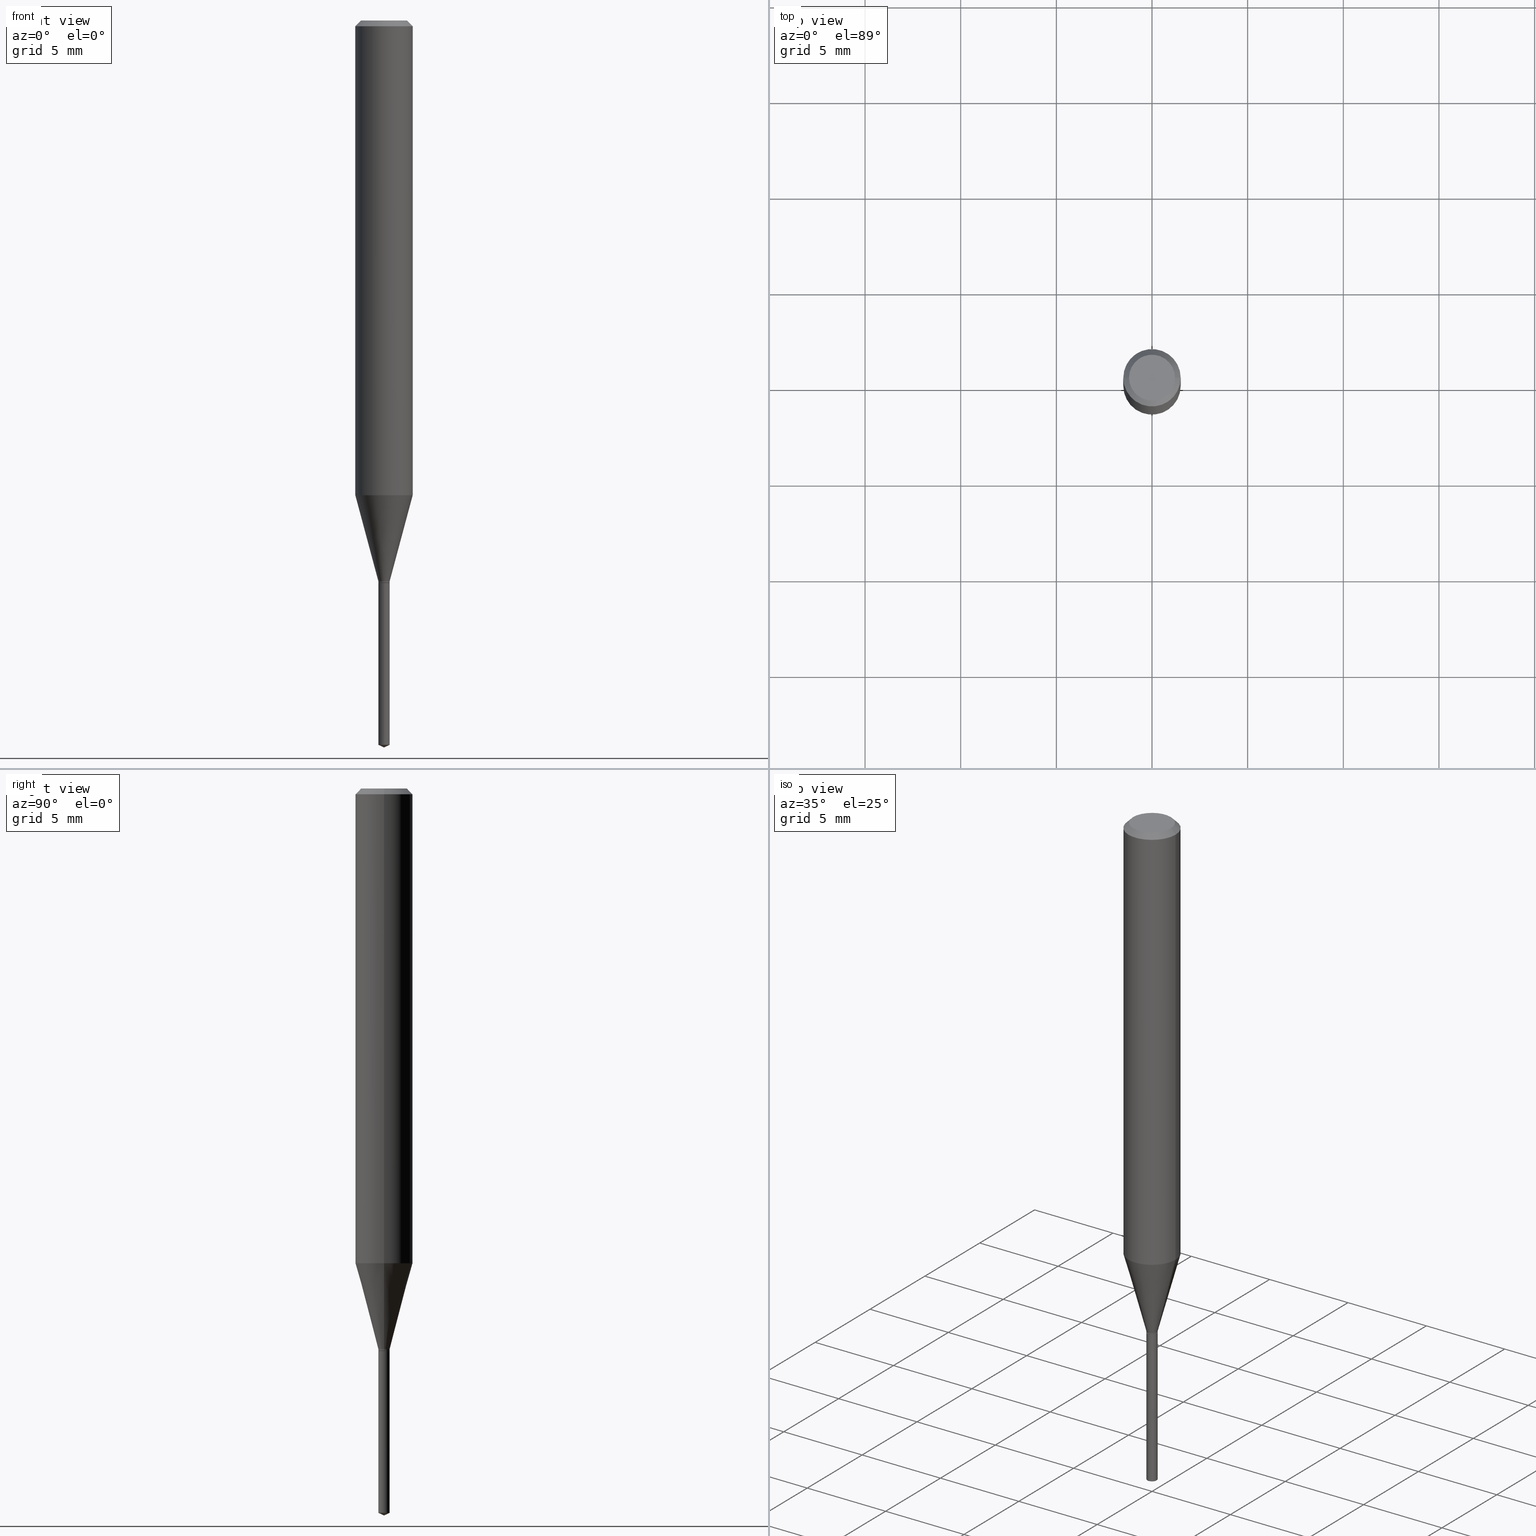
[diagram: canonical four-view strip — front | top / right | iso, engineering-drawing reading convention]
A machine part, canonical four-view strip (front | top / right | iso — engineering-drawing reading convention). The complete STEP part file that produces these views, byte-faithful:
ISO-10303-21;
HEADER;
FILE_DESCRIPTION (( 'STEP AP203' ),
    '1' );
FILE_NAME ('08283.STEP',
    '2024-04-24T14:05:31',
    ( '' ),
    ( '' ),
    'SwSTEP 2.0',
    'SolidWorks 2023',
    '' );
FILE_SCHEMA (( 'CONFIG_CONTROL_DESIGN' ));
ENDSEC;

DATA;
#1 = VERTEX_POINT ( 'NONE', #415 ) ;
#2 = DIRECTION ( 'NONE',  ( -2.445468806185136597E-29, 3.491481338843145583E-15, 1.000000000000000000 ) ) ;
#3 = APPLICATION_CONTEXT ( 'configuration controlled 3d designs of mechanical parts and assemblies' ) ;
#4 = ADVANCED_FACE ( 'NONE', ( #240 ), #190, .T. ) ;
#5 = AXIS2_PLACEMENT_3D ( 'NONE', #406, #292, #488 ) ;
#6 = AXIS2_PLACEMENT_3D ( 'NONE', #463, #271, #76 ) ;
#7 = ORIENTED_EDGE ( 'NONE', *, *, #332, .T. ) ;
#8 = DIRECTION ( 'NONE',  ( -2.445468806185136597E-29, 3.491481338843145583E-15, 1.000000000000000000 ) ) ;
#9 = DIRECTION ( 'NONE',  ( -6.982962677686266711E-15, -1.000000000000000000, 0.000000000000000000 ) ) ;
#10 = EDGE_CURVE ( 'NONE', #300, #1, #203, .T. ) ;
#11 = ORIENTED_EDGE ( 'NONE', *, *, #330, .F. ) ;
#12 = ORIENTED_EDGE ( 'NONE', *, *, #171, .T. ) ;
#13 = ORIENTED_EDGE ( 'NONE', *, *, #206, .T. ) ;
#14 = DIRECTION ( 'NONE',  ( 1.000000000000000000, -6.982962677686266711E-15, 0.000000000000000000 ) ) ;
#15 = FACE_OUTER_BOUND ( 'NONE', #145, .T. ) ;
#16 = CONICAL_SURFACE ( 'NONE', #289, 84.42940631927616835, 1.134464013796324222 ) ;
#17 = EDGE_CURVE ( 'NONE', #183, #180, #236, .T. ) ;
#18 = CIRCLE ( 'NONE', #469, 0.05905000000000011628 ) ;
#19 = DIRECTION ( 'NONE',  ( -2.445468806185136597E-29, 3.491481338843145583E-15, 1.000000000000000000 ) ) ;
#20 = APPROVAL_STATUS ( 'not_yet_approved' ) ;
#21 = VECTOR ( 'NONE', #464, 39.37007874015748143 ) ;
#22 = PERSON_AND_ORGANIZATION ( #129, #28 ) ;
#23 = APPROVAL_ROLE ( '' ) ;
#24 = PLANE ( 'NONE',  #174 ) ;
#25 = EDGE_CURVE ( 'NONE', #318, #261, #200, .T. ) ;
#26 = PLANE ( 'NONE',  #252 ) ;
#27 = CC_DESIGN_APPROVAL ( #52, ( #287 ) ) ;
#28 = ORGANIZATION ( 'UNSPECIFIED', 'UNSPECIFIED', '' ) ;
#29 = PERSON_AND_ORGANIZATION_ROLE ( 'classification_officer' ) ;
#30 = DIRECTION ( 'NONE',  ( -2.438088387897960049E-29, 3.491481338843145188E-15, 1.000000000000000000 ) ) ;
#31 = ORIENTED_EDGE ( 'NONE', *, *, #294, .F. ) ;
#32 = CYLINDRICAL_SURFACE ( 'NONE', #349, 0.01159999999999999920 ) ;
#33 = DIRECTION ( 'NONE',  ( -2.445468806185136597E-29, 3.491481338843145583E-15, 1.000000000000000000 ) ) ;
#34 = CC_DESIGN_APPROVAL ( #315, ( #186 ) ) ;
#35 = EDGE_CURVE ( 'NONE', #441, #180, #367, .T. ) ;
#36 = ORIENTED_EDGE ( 'NONE', *, *, #471, .F. ) ;
#37 = CARTESIAN_POINT ( 'NONE',  ( 0.05905000000000011628, -3.823221607293418566E-15, -0.9769141891808567069 ) ) ;
#38 = ORIENTED_EDGE ( 'NONE', *, *, #307, .F. ) ;
#39 = DIRECTION ( 'NONE',  ( 1.000000000000000000, -6.982962677686266711E-15, 0.000000000000000000 ) ) ;
#40 = CC_DESIGN_PERSON_AND_ORGANIZATION_ASSIGNMENT ( #431, #29, ( #186 ) ) ;
#41 = FACE_OUTER_BOUND ( 'NONE', #96, .T. ) ;
#42 = DIRECTION ( 'NONE',  ( -2.445468806185136597E-29, 3.491481338843145583E-15, 1.000000000000000000 ) ) ;
#43 = EDGE_LOOP ( 'NONE', ( #179, #113, #377, #222 ) ) ;
#44 = DIRECTION ( 'NONE',  ( -2.443412120811339220E-29, 3.494426629357685076E-15, 1.000000000000000000 ) ) ;
#45 = ADVANCED_FACE ( 'NONE', ( #198 ), #405, .T. ) ;
#46 = ORIENTED_EDGE ( 'NONE', *, *, #92, .F. ) ;
#47 = CIRCLE ( 'NONE', #451, 0.01159999999999999920 ) ;
#48 = VECTOR ( 'NONE', #281, 39.37007874015748143 ) ;
#49 =( NAMED_UNIT ( * ) PLANE_ANGLE_UNIT ( ) SI_UNIT ( $, .RADIAN. ) );
#50 = PERSON_AND_ORGANIZATION ( #129, #28 ) ;
#51 = DATE_AND_TIME ( #90, #427 ) ;
#52 = APPROVAL ( #20, 'UNSPECIFIED' ) ;
#53 = AXIS2_PLACEMENT_3D ( 'NONE', #135, #296, #137 ) ;
#54 = PERSON_AND_ORGANIZATION_ROLE ( 'design_supplier' ) ;
#55 = CIRCLE ( 'NONE', #393, 0.05904999999999999832 ) ;
#56 = CC_DESIGN_PERSON_AND_ORGANIZATION_ASSIGNMENT ( #22, #470, ( #368 ) ) ;
#57 = ORIENTED_EDGE ( 'NONE', *, *, #272, .F. ) ;
#58 = PERSON_AND_ORGANIZATION ( #129, #28 ) ;
#59 = DIRECTION ( 'NONE',  ( -2.445468806185136877E-29, 3.491481338843145188E-15, 1.000000000000000000 ) ) ;
#60 = AXIS2_PLACEMENT_3D ( 'NONE', #422, #446, #154 ) ;
#61 = DIRECTION ( 'NONE',  ( -2.445468806185136597E-29, 3.491481338843145583E-15, 1.000000000000000000 ) ) ;
#62 = EDGE_CURVE ( 'NONE', #444, #438, #374, .T. ) ;
#63 = CARTESIAN_POINT ( 'NONE',  ( 3.655588873945844092E-29, -5.228011680182032039E-15, -1.496099999999999985 ) ) ;
#64 = VERTEX_POINT ( 'NONE', #158 ) ;
#65 = CALENDAR_DATE ( 2024, 24, 4 ) ;
#66 = CARTESIAN_POINT ( 'NONE',  ( 8.242295734820810070E-17, 0.01159999999999595729, -1.157499999999999973 ) ) ;
#67 = DIRECTION ( 'NONE',  ( -2.443412120811339220E-29, 3.494426629357685076E-15, 1.000000000000000000 ) ) ;
#68 = AXIS2_PLACEMENT_3D ( 'NONE', #116, #319, #417 ) ;
#69 = CONICAL_SURFACE ( 'NONE', #194, 0.05904999999999999832, 0.7853981633974452814 ) ;
#70 = ORIENTED_EDGE ( 'NONE', *, *, #182, .T. ) ;
#71 = CARTESIAN_POINT ( 'NONE',  ( 2.830630143159295633E-29, -4.041389649710940900E-15, -1.157499999999999973 ) ) ;
#72 = ORIENTED_EDGE ( 'NONE', *, *, #307, .T. ) ;
#73 = ORIENTED_EDGE ( 'NONE', *, *, #294, .T. ) ;
#74 = EDGE_CURVE ( 'NONE', #316, #389, #215, .T. ) ;
#75 = DIRECTION ( 'NONE',  ( 1.000000000000000000, -6.982962677686266711E-15, 0.000000000000000000 ) ) ;
#76 = DIRECTION ( 'NONE',  ( -1.000000000000000000, 6.982962677686266711E-15, 0.000000000000000000 ) ) ;
#77 = LINE ( 'NONE', #275, #278 ) ;
#78 = DIRECTION ( 'NONE',  ( -2.445468806185136597E-29, 3.491481338843145583E-15, 1.000000000000000000 ) ) ;
#79 = DIRECTION ( 'NONE',  ( -2.443412120811338940E-29, 3.494426629357684682E-15, 1.000000000000000000 ) ) ;
#80 = VECTOR ( 'NONE', #79, 39.37007874015748143 ) ;
#81 = CONICAL_SURFACE ( 'NONE', #151, 0.01110000000000000049, 0.7853981633974119747 ) ;
#82 = CARTESIAN_POINT ( 'NONE',  ( 2.888098660104664204E-31, -4.123439461173780263E-17, -0.01181000000000007218 ) ) ;
#83 = EDGE_LOOP ( 'NONE', ( #73, #157, #57, #452 ) ) ;
#84 = DIRECTION ( 'NONE',  ( 1.000000000000000000, -6.982962677686267499E-15, 4.876176775795935793E-29 ) ) ;
#85 = DIRECTION ( 'NONE',  ( 0.2588190451025213501, 1.565188264969621968E-15, 0.9659258262890682012 ) ) ;
#86 = LOCAL_TIME ( 10, 5, 31.00000000000000000, #430 ) ;
#87 = CALENDAR_DATE ( 2024, 24, 4 ) ;
#88 = CC_DESIGN_DATE_AND_TIME_ASSIGNMENT ( #331, #363, ( #287 ) ) ;
#89 = PERSON_AND_ORGANIZATION_ROLE ( 'creator' ) ;
#90 = CALENDAR_DATE ( 2024, 24, 4 ) ;
#91 = CC_DESIGN_SECURITY_CLASSIFICATION ( #186, ( #368 ) ) ;
#92 = EDGE_CURVE ( 'NONE', #180, #441, #132, .T. ) ;
#93 = LINE ( 'NONE', #213, #301 ) ;
#94 = DATE_AND_TIME ( #65, #286 ) ;
#95 = DIRECTION ( 'NONE',  ( -2.443412120811339220E-29, 3.494426629357685076E-15, 1.000000000000000000 ) ) ;
#96 = EDGE_LOOP ( 'NONE', ( #262, #453, #489, #46 ) ) ;
#97 = AXIS2_PLACEMENT_3D ( 'NONE', #141, #434, #409 ) ;
#98 = DIRECTION ( 'NONE',  ( -6.982962677686266711E-15, -1.000000000000000000, 3.520397390770377745E-15 ) ) ;
#99 = AXIS2_PLACEMENT_3D ( 'NONE', #416, #67, #490 ) ;
#100 = ORIENTED_EDGE ( 'NONE', *, *, #459, .T. ) ;
#101 = CC_DESIGN_PERSON_AND_ORGANIZATION_ASSIGNMENT ( #123, #211, ( #235 ) ) ;
#102 = MANIFOLD_SOLID_BREP ( 'Body-Move/Copy2[2]', #385 ) ;
#103 = DIRECTION ( 'NONE',  ( 1.000000000000000000, -6.982962677686266711E-15, 0.000000000000000000 ) ) ;
#104 = FACE_OUTER_BOUND ( 'NONE', #338, .T. ) ;
#105 = EDGE_CURVE ( 'NONE', #196, #441, #77, .T. ) ;
#106 = MANIFOLD_SOLID_BREP ( 'Body-Move/Copy2[1]', #125 ) ;
#107 = CARTESIAN_POINT ( 'NONE',  ( 2.822071002337647144E-29, -4.029169465024989587E-15, -1.153999999999999915 ) ) ;
#108 = ADVANCED_FACE ( 'NONE', ( #280 ), #311, .T. ) ;
#109 = EDGE_LOOP ( 'NONE', ( #373, #148, #7, #189 ) ) ;
#110 = DIRECTION ( 'NONE',  ( 1.000000000000000000, -6.982962677686266711E-15, 4.876176775795935793E-29 ) ) ;
#111 = DIRECTION ( 'NONE',  ( -2.445468806185136597E-29, 3.491481338843145583E-15, 1.000000000000000000 ) ) ;
#112 = LINE ( 'NONE', #419, #433 ) ;
#113 = ORIENTED_EDGE ( 'NONE', *, *, #246, .T. ) ;
#114 = FACE_OUTER_BOUND ( 'NONE', #480, .T. ) ;
#115 = ORIENTED_EDGE ( 'NONE', *, *, #239, .T. ) ;
#116 = CARTESIAN_POINT ( 'NONE',  ( 2.830630143159295633E-29, -4.041389649710940900E-15, -1.157499999999999973 ) ) ;
#117 = CARTESIAN_POINT ( 'NONE',  ( 0.01159999999999999920, -4.120646276102679529E-15, -1.156999999999999806 ) ) ;
#118 = CONICAL_SURFACE ( 'NONE', #418, 84.42940631927616835, 1.134464013796324222 ) ;
#119 = VERTEX_POINT ( 'NONE', #205 ) ;
#120 = LOCAL_TIME ( 10, 5, 31.00000000000000000, #429 ) ;
#121 = PRODUCT_RELATED_PRODUCT_CATEGORY ( 'detail', '', ( #235 ) ) ;
#122 = CARTESIAN_POINT ( 'NONE',  ( -0.05905000000000006077, 4.195754854663395916E-16, -2.904631170795524694E-30 ) ) ;
#123 = PERSON_AND_ORGANIZATION ( #129, #28 ) ;
#124 = APPROVAL ( #128, 'UNSPECIFIED' ) ;
#125 = CLOSED_SHELL ( 'NONE', ( #165, #282, #178, #304, #251 ) ) ;
#126 = VECTOR ( 'NONE', #201, 39.37007874015748143 ) ;
#127 = DATE_AND_TIME ( #87, #120 ) ;
#128 = APPROVAL_STATUS ( 'not_yet_approved' ) ;
#129 = PERSON ( 'UNSPECIFIED', 'UNSPECIFIED', 'UNSPECIFIED', ('UNSPECIFIED'), ('UNSPECIFIED'), ('UNSPECIFIED') ) ;
#130 = EDGE_CURVE ( 'NONE', #389, #119, #170, .T. ) ;
#131 = ORIENTED_EDGE ( 'NONE', *, *, #332, .F. ) ;
#132 = CIRCLE ( 'NONE', #312, 0.01159999999999999920 ) ;
#133 = CIRCLE ( 'NONE', #142, 0.01110000000000000049 ) ;
#134 = FACE_OUTER_BOUND ( 'NONE', #43, .T. ) ;
#135 = CARTESIAN_POINT ( 'NONE',  ( 2.822071002337647144E-29, -4.029169465024989587E-15, -1.153999999999999915 ) ) ;
#136 = ORIENTED_EDGE ( 'NONE', *, *, #394, .F. ) ;
#137 = DIRECTION ( 'NONE',  ( 1.000000000000000000, -6.982962677686266711E-15, 0.000000000000000000 ) ) ;
#138 = EDGE_LOOP ( 'NONE', ( #70, #219 ) ) ;
#139 = SECURITY_CLASSIFICATION_LEVEL ( 'unclassified' ) ;
#140 = CIRCLE ( 'NONE', #162, 0.01159999999999999920 ) ;
#141 = CARTESIAN_POINT ( 'NONE',  ( 2.822071002337647144E-29, -4.029169465024989587E-15, -1.153999999999999915 ) ) ;
#142 = AXIS2_PLACEMENT_3D ( 'NONE', #71, #42, #456 ) ;
#143 = ORIENTED_EDGE ( 'NONE', *, *, #459, .F. ) ;
#144 = DIRECTION ( 'NONE',  ( -2.443412120811339220E-29, 3.494426629357685076E-15, 1.000000000000000000 ) ) ;
#145 = EDGE_LOOP ( 'NONE', ( #136, #486, #13, #131 ) ) ;
#146 = ADVANCED_FACE ( 'NONE', ( #465 ), #425, .T. ) ;
#147 = CARTESIAN_POINT ( 'NONE',  ( -0.04724000000000000421, 3.504923541997677355E-16, -3.380025165670481712E-19 ) ) ;
#148 = ORIENTED_EDGE ( 'NONE', *, *, #182, .F. ) ;
#149 = DIRECTION ( 'NONE',  ( 2.445468806185136597E-29, -3.491481338843145583E-15, -1.000000000000000000 ) ) ;
#150 = AXIS2_PLACEMENT_3D ( 'NONE', #336, #257, #400 ) ;
#151 = AXIS2_PLACEMENT_3D ( 'NONE', #347, #2, #382 ) ;
#152 = EDGE_LOOP ( 'NONE', ( #153, #407, #115, #383 ) ) ;
#153 = ORIENTED_EDGE ( 'NONE', *, *, #437, .F. ) ;
#154 = DIRECTION ( 'NONE',  ( -6.982962677686266711E-15, -1.000000000000000000, 0.000000000000000000 ) ) ;
#155 = LINE ( 'NONE', #122, #48 ) ;
#156 = ORIENTED_EDGE ( 'NONE', *, *, #388, .T. ) ;
#157 = ORIENTED_EDGE ( 'NONE', *, *, #487, .T. ) ;
#158 = CARTESIAN_POINT ( 'NONE',  ( -0.05904999999999999832, -1.306480542427550405E-15, -0.01181000000000007218 ) ) ;
#159 = ORIENTED_EDGE ( 'NONE', *, *, #35, .T. ) ;
#160 = DIRECTION ( 'NONE',  ( -0.7071067811865453523, 2.468850131082234184E-15, -0.7071067811865496822 ) ) ;
#161 = DIRECTION ( 'NONE',  ( -1.000000000000000000, 6.982962677686266711E-15, 0.000000000000000000 ) ) ;
#162 = AXIS2_PLACEMENT_3D ( 'NONE', #366, #335, #476 ) ;
#163 = LINE ( 'NONE', #207, #247 ) ;
#164 = DIRECTION ( 'NONE',  ( 0.000000000000000000, 0.000000000000000000, 1.000000000000000000 ) ) ;
#165 = ADVANCED_FACE ( 'NONE', ( #341 ), #32, .T. ) ;
#166 = CALENDAR_DATE ( 2024, 24, 4 ) ;
#167 = VECTOR ( 'NONE', #328, 39.37007874015748143 ) ;
#168 = PERSON_AND_ORGANIZATION ( #129, #28 ) ;
#169 = DIRECTION ( 'NONE',  ( 1.000000000000000000, 0.000000000000000000, 0.000000000000000000 ) ) ;
#170 = LINE ( 'NONE', #288, #167 ) ;
#171 = EDGE_CURVE ( 'NONE', #342, #1, #266, .T. ) ;
#172 = DIRECTION ( 'NONE',  ( -0.2588190451025213501, 5.211531920934551042E-15, 0.9659258262890682012 ) ) ;
#173 = AXIS2_PLACEMENT_3D ( 'NONE', #305, #264, #225 ) ;
#174 = AXIS2_PLACEMENT_3D ( 'NONE', #303, #473, #214 ) ;
#175 = CARTESIAN_POINT ( 'NONE',  ( 2.830630143159295633E-29, -4.041389649710940900E-15, -1.157499999999999973 ) ) ;
#176 = COORDINATED_UNIVERSAL_TIME_OFFSET ( 5, 0, .BEHIND. ) ;
#177 = CARTESIAN_POINT ( 'NONE',  ( 8.265746106709734507E-48, -1.180129479067563789E-33, -3.380025165646692144E-19 ) ) ;
#178 = ADVANCED_FACE ( 'NONE', ( #181 ), #118, .T. ) ;
#179 = ORIENTED_EDGE ( 'NONE', *, *, #487, .F. ) ;
#180 = VERTEX_POINT ( 'NONE', #66 ) ;
#181 = FACE_OUTER_BOUND ( 'NONE', #293, .T. ) ;
#182 = EDGE_CURVE ( 'NONE', #295, #318, #468, .T. ) ;
#183 = VERTEX_POINT ( 'NONE', #339 ) ;
#184 = CARTESIAN_POINT ( 'NONE',  ( 0.01159999999999999920, -8.100236706116069917E-17, 5.656365059923285338E-31 ) ) ;
#185 = CARTESIAN_POINT ( 'NONE',  ( 2.830630143159295633E-29, -4.041389649710940900E-15, -1.157499999999999973 ) ) ;
#186 = SECURITY_CLASSIFICATION ( '', '', #139 ) ;
#187 = ORIENTED_EDGE ( 'NONE', *, *, #423, .F. ) ;
#188 = DIRECTION ( 'NONE',  ( -6.982962677686266711E-15, -1.000000000000000000, 0.000000000000000000 ) ) ;
#189 = ORIENTED_EDGE ( 'NONE', *, *, #327, .T. ) ;
#190 = CYLINDRICAL_SURFACE ( 'NONE', #392, 0.05905000000000006077 ) ;
#191 = CARTESIAN_POINT ( 'NONE',  ( -0.01159999999999999920, -3.951983729685082876E-15, -1.153999999999999915 ) ) ;
#192 = CARTESIAN_POINT ( 'NONE',  ( 2.888098660104664204E-31, -4.123439461173780263E-17, -0.01181000000000007218 ) ) ;
#193 = AXIS2_PLACEMENT_3D ( 'NONE', #223, #310, #110 ) ;
#194 = AXIS2_PLACEMENT_3D ( 'NONE', #82, #149, #161 ) ;
#195 = EDGE_LOOP ( 'NONE', ( #38, #481, #11 ) ) ;
#196 = VERTEX_POINT ( 'NONE', #483 ) ;
#197 = DIRECTION ( 'NONE',  ( -2.445468806185136877E-29, 3.491481338843145188E-15, 1.000000000000000000 ) ) ;
#198 = FACE_OUTER_BOUND ( 'NONE', #152, .T. ) ;
#199 = CARTESIAN_POINT ( 'NONE',  ( 4.132873053354867254E-48, -5.900647395337818946E-34, -1.690012582823346072E-19 ) ) ;
#200 = LINE ( 'NONE', #428, #21 ) ;
#201 = DIRECTION ( 'NONE',  ( 0.7071067811865218156, -2.468850131081987665E-15, 0.7071067811865732189 ) ) ;
#202 = APPLICATION_PROTOCOL_DEFINITION ( 'international standard', 'config_control_design', 1994, #3 ) ;
#203 = CIRCLE ( 'NONE', #258, 0.05905000000000011628 ) ;
#204 = VECTOR ( 'NONE', #273, 39.37007874015748143 ) ;
#205 = CARTESIAN_POINT ( 'NONE',  ( -0.01159999999999999920, -3.951983729685082876E-15, -1.156999999999999806 ) ) ;
#206 = EDGE_CURVE ( 'NONE', #261, #64, #361, .T. ) ;
#207 = CARTESIAN_POINT ( 'NONE',  ( -0.01159999999999999920, 8.242295734817161588E-17, -5.705964704695690155E-31 ) ) ;
#208 = DIRECTION ( 'NONE',  ( -2.445468806185136877E-29, 3.491481338843145188E-15, 1.000000000000000000 ) ) ;
#209 = CARTESIAN_POINT ( 'NONE',  ( 2.389013175961430346E-29, -3.410877661176043645E-15, -0.9769141891808567069 ) ) ;
#210 = AXIS2_PLACEMENT_3D ( 'NONE', #177, #33, #372 ) ;
#211 = PERSON_AND_ORGANIZATION_ROLE ( 'design_owner' ) ;
#212 = CC_DESIGN_DATE_AND_TIME_ASSIGNMENT ( #94, #439, ( #186 ) ) ;
#213 = CARTESIAN_POINT ( 'NONE',  ( 0.05905000000000006077, -4.123439461173744764E-16, 2.879382386107503023E-30 ) ) ;
#214 = DIRECTION ( 'NONE',  ( 6.982962677686265922E-15, 1.000000000000000000, -3.494426629357684682E-15 ) ) ;
#215 = CIRCLE ( 'NONE', #68, 0.01110000000000000049 ) ;
#216 = CONICAL_SURFACE ( 'NONE', #6, 0.05904999999999999832, 0.7853981633974452814 ) ;
#217 = ADVANCED_FACE ( 'NONE', ( #478 ), #26, .F. ) ;
#218 = DIRECTION ( 'NONE',  ( 1.000000000000000000, -6.982962677686266711E-15, 0.000000000000000000 ) ) ;
#219 = ORIENTED_EDGE ( 'NONE', *, *, #394, .T. ) ;
#220 = EDGE_LOOP ( 'NONE', ( #352, #399 ) ) ;
#221 = CARTESIAN_POINT ( 'NONE',  ( -9.253935810373158253E-28, 1.323512490431036956E-13, 37.87397874015748300 ) ) ;
#222 = ORIENTED_EDGE ( 'NONE', *, *, #267, .F. ) ;
#223 = CARTESIAN_POINT ( 'NONE',  ( 0.000000000000000000, 0.000000000000000000, 0.000000000000000000 ) ) ;
#224 = COORDINATED_UNIVERSAL_TIME_OFFSET ( 5, 0, .BEHIND. ) ;
#225 = DIRECTION ( 'NONE',  ( 1.000000000000000000, -6.982962677686266711E-15, 0.000000000000000000 ) ) ;
#226 = VERTEX_POINT ( 'NONE', #63 ) ;
#227 = ADVANCED_FACE ( 'NONE', ( #104 ), #268, .T. ) ;
#228 = CARTESIAN_POINT ( 'NONE',  ( -8.100236706113237413E-17, -0.01160000000000404284, -1.157499999999999973 ) ) ;
#229 = ORIENTED_EDGE ( 'NONE', *, *, #35, .F. ) ;
#230 = EDGE_LOOP ( 'NONE', ( #351, #424, #344, #309 ) ) ;
#231 = CARTESIAN_POINT ( 'NONE',  ( 0.000000000000000000, 0.000000000000000000, 0.000000000000000000 ) ) ;
#232 = DIRECTION ( 'NONE',  ( 6.439704144417054808E-15, 0.9063077870366557098, 0.4226182617406872843 ) ) ;
#233 = EDGE_LOOP ( 'NONE', ( #403, #276, #100, #36 ) ) ;
#234 = UNCERTAINTY_MEASURE_WITH_UNIT (LENGTH_MEASURE( 1.000000000000000082E-05 ), #391, 'distance_accuracy_value', 'NONE');
#235 = PRODUCT ( '08283', '08283', '', ( #326 ) ) ;
#236 = LINE ( 'NONE', #390, #80 ) ;
#237 = CARTESIAN_POINT ( 'NONE',  ( 3.644752658572043602E-29, -5.205700562793141956E-15, -1.490690831165402130 ) ) ;
#238 = ORIENTED_EDGE ( 'NONE', *, *, #246, .F. ) ;
#239 = EDGE_CURVE ( 'NONE', #300, #261, #93, .T. ) ;
#240 = FACE_OUTER_BOUND ( 'NONE', #230, .T. ) ;
#241 = CARTESIAN_POINT ( 'NONE',  ( -0.01110000000000000049, -3.959870178867458588E-15, -1.157499999999999973 ) ) ;
#242 = VECTOR ( 'NONE', #172, 39.37007874015747433 ) ;
#243 = ORIENTED_EDGE ( 'NONE', *, *, #10, .F. ) ;
#244 = LINE ( 'NONE', #269, #126 ) ;
#245 = ORIENTED_EDGE ( 'NONE', *, *, #92, .T. ) ;
#246 = EDGE_CURVE ( 'NONE', #119, #444, #47, .T. ) ;
#247 = VECTOR ( 'NONE', #208, 39.37007874015748143 ) ;
#248 = APPROVAL_DATE_TIME ( #127, #52 ) ;
#249 = CARTESIAN_POINT ( 'NONE',  ( 0.000000000000000000, 0.000000000000000000, 0.000000000000000000 ) ) ;
#250 = PERSON_AND_ORGANIZATION ( #129, #28 ) ;
#251 = ADVANCED_FACE ( 'NONE', ( #440 ), #24, .F. ) ;
#252 = AXIS2_PLACEMENT_3D ( 'NONE', #175, #30, #449 ) ;
#253 = LOCAL_TIME ( 10, 5, 31.00000000000000000, #224 ) ;
#254 = SHAPE_DEFINITION_REPRESENTATION ( #320, #371 ) ;
#255 = CYLINDRICAL_SURFACE ( 'NONE', #150, 0.01159999999999999920 ) ;
#256 = ADVANCED_FACE ( 'NONE', ( #134 ), #255, .T. ) ;
#257 = DIRECTION ( 'NONE',  ( -2.445468806185136597E-29, 3.491481338843145583E-15, 1.000000000000000000 ) ) ;
#258 = AXIS2_PLACEMENT_3D ( 'NONE', #413, #111, #75 ) ;
#259 = APPROVAL_PERSON_ORGANIZATION ( #168, #52, #426 ) ;
#260 = CARTESIAN_POINT ( 'NONE',  ( 0.05904999999999999832, -4.535783407291118600E-16, -0.01181000000000007218 ) ) ;
#261 = VERTEX_POINT ( 'NONE', #260 ) ;
#262 = ORIENTED_EDGE ( 'NONE', *, *, #17, .F. ) ;
#263 = DATE_AND_TIME ( #291, #253 ) ;
#264 = DIRECTION ( 'NONE',  ( -2.445468806185136597E-29, 3.491481338843145583E-15, 1.000000000000000000 ) ) ;
#265 = ORIENTED_EDGE ( 'NONE', *, *, #330, .T. ) ;
#266 = LINE ( 'NONE', #375, #242 ) ;
#267 = EDGE_CURVE ( 'NONE', #342, #438, #140, .T. ) ;
#268 = CONICAL_SURFACE ( 'NONE', #97, 0.01159999999999999920, 0.2617993877991500740 ) ;
#269 = CARTESIAN_POINT ( 'NONE',  ( 0.01110000000000000049, -4.118900535433258025E-15, -1.157499999999999973 ) ) ;
#270 = AXIS2_PLACEMENT_3D ( 'NONE', #314, #322, #321 ) ;
#271 = DIRECTION ( 'NONE',  ( 2.445468806185136597E-29, -3.491481338843145583E-15, -1.000000000000000000 ) ) ;
#272 = EDGE_CURVE ( 'NONE', #438, #342, #484, .T. ) ;
#273 = DIRECTION ( 'NONE',  ( -6.328713451373398566E-15, -0.9063077870366527122, 0.4226182617406936126 ) ) ;
#274 = ORIENTED_EDGE ( 'NONE', *, *, #388, .F. ) ;
#275 = CARTESIAN_POINT ( 'NONE',  ( -8.100236706113237413E-17, -0.01160000000000404284, -1.157499999999999973 ) ) ;
#276 = ORIENTED_EDGE ( 'NONE', *, *, #267, .T. ) ;
#277 = DIRECTION ( 'NONE',  ( 2.438088387897960049E-29, -3.491481338843145188E-15, -1.000000000000000000 ) ) ;
#278 = VECTOR ( 'NONE', #461, 39.37007874015748143 ) ;
#279 = VECTOR ( 'NONE', #85, 39.37007874015747433 ) ;
#280 = FACE_OUTER_BOUND ( 'NONE', #83, .T. ) ;
#281 = DIRECTION ( 'NONE',  ( -2.445468806185136877E-29, 3.491481338843145188E-15, 1.000000000000000000 ) ) ;
#282 = ADVANCED_FACE ( 'NONE', ( #436 ), #16, .T. ) ;
#283 = CARTESIAN_POINT ( 'NONE',  ( 0.01159999999999999920, -4.110171832086150508E-15, -1.153999999999999915 ) ) ;
#284 = AXIS2_PLACEMENT_3D ( 'NONE', #231, #381, #84 ) ;
#285 = DIMENSIONAL_EXPONENTS ( 1.000000000000000000, 0.000000000000000000, 0.000000000000000000, 0.000000000000000000, 0.000000000000000000, 0.000000000000000000, 0.000000000000000000 ) ;
#286 = LOCAL_TIME ( 10, 5, 31.00000000000000000, #176 ) ;
#287 = PRODUCT_DEFINITION ( 'UNKNOWN', '', #368, #308 ) ;
#288 = CARTESIAN_POINT ( 'NONE',  ( -0.01110000000000000049, -3.962519406041569789E-15, -1.157499999999999973 ) ) ;
#289 = AXIS2_PLACEMENT_3D ( 'NONE', #298, #95, #447 ) ;
#290 = AXIS2_PLACEMENT_3D ( 'NONE', #249, #164, #169 ) ;
#291 = CALENDAR_DATE ( 2024, 24, 4 ) ;
#292 = DIRECTION ( 'NONE',  ( -2.445468806185136597E-29, 3.491481338843145583E-15, 1.000000000000000000 ) ) ;
#293 = EDGE_LOOP ( 'NONE', ( #443, #72, #187 ) ) ;
#294 = EDGE_CURVE ( 'NONE', #444, #119, #432, .T. ) ;
#295 = VERTEX_POINT ( 'NONE', #147 ) ;
#296 = DIRECTION ( 'NONE',  ( -2.445468806185136597E-29, 3.491481338843145583E-15, 1.000000000000000000 ) ) ;
#297 = ORIENTED_EDGE ( 'NONE', *, *, #105, .F. ) ;
#298 = CARTESIAN_POINT ( 'NONE',  ( -9.253935810373158253E-28, 1.323512490431036956E-13, 37.87397874015748300 ) ) ;
#299 = ORIENTED_EDGE ( 'NONE', *, *, #74, .T. ) ;
#300 = VERTEX_POINT ( 'NONE', #37 ) ;
#301 = VECTOR ( 'NONE', #59, 39.37007874015748143 ) ;
#302 = APPROVAL_PERSON_ORGANIZATION ( #58, #315, #482 ) ;
#303 = CARTESIAN_POINT ( 'NONE',  ( 2.830630143159295633E-29, -4.041389649710940900E-15, -1.157499999999999973 ) ) ;
#304 = ADVANCED_FACE ( 'NONE', ( #41 ), #354, .T. ) ;
#305 = CARTESIAN_POINT ( 'NONE',  ( 2.888098660104664204E-31, -4.123439461173780263E-17, -0.01181000000000007218 ) ) ;
#306 = LINE ( 'NONE', #450, #362 ) ;
#307 = EDGE_CURVE ( 'NONE', #226, #196, #353, .T. ) ;
#308 = DESIGN_CONTEXT ( 'detailed design', #479, 'design' ) ;
#309 = ORIENTED_EDGE ( 'NONE', *, *, #239, .F. ) ;
#310 = DIRECTION ( 'NONE',  ( -2.445468806185136597E-29, 3.491481338843145583E-15, 1.000000000000000000 ) ) ;
#311 = CYLINDRICAL_SURFACE ( 'NONE', #284, 0.01159999999999999920 ) ;
#312 = AXIS2_PLACEMENT_3D ( 'NONE', #458, #348, #466 ) ;
#313 =( GEOMETRIC_REPRESENTATION_CONTEXT ( 3 ) GLOBAL_UNCERTAINTY_ASSIGNED_CONTEXT ( ( #234 ) ) GLOBAL_UNIT_ASSIGNED_CONTEXT ( ( #391, #49, #467 ) ) REPRESENTATION_CONTEXT ( 'NONE', 'WORKASPACE' ) );
#314 = CARTESIAN_POINT ( 'NONE',  ( 8.265746106709734507E-48, -1.180129479067563789E-33, -3.380025165646692144E-19 ) ) ;
#315 = APPROVAL ( #398, 'UNSPECIFIED' ) ;
#316 = VERTEX_POINT ( 'NONE', #350 ) ;
#317 = DIRECTION ( 'NONE',  ( -2.443412120811339220E-29, 3.494426629357685076E-15, 1.000000000000000000 ) ) ;
#318 = VERTEX_POINT ( 'NONE', #387 ) ;
#319 = DIRECTION ( 'NONE',  ( -2.445468806185136597E-29, 3.491481338843145583E-15, 1.000000000000000000 ) ) ;
#320 = PRODUCT_DEFINITION_SHAPE ( 'NONE', 'NONE',  #287 ) ;
#321 = DIRECTION ( 'NONE',  ( 1.000000000000000000, -6.982962677686266711E-15, 4.876185090822587894E-29 ) ) ;
#322 = DIRECTION ( 'NONE',  ( -2.445468806185136597E-29, 3.491481338843145583E-15, 1.000000000000000000 ) ) ;
#323 = EDGE_CURVE ( 'NONE', #226, #183, #306, .T. ) ;
#324 = LENGTH_MEASURE_WITH_UNIT ( LENGTH_MEASURE( 0.02539999999999999897 ), #396 );
#325 = ORIENTED_EDGE ( 'NONE', *, *, #401, .T. ) ;
#326 = MECHANICAL_CONTEXT ( 'NONE', #3, 'mechanical' ) ;
#327 = EDGE_CURVE ( 'NONE', #64, #261, #55, .T. ) ;
#328 = DIRECTION ( 'NONE',  ( -0.7071067811865218156, 7.493145998870261075E-15, 0.7071067811865732189 ) ) ;
#329 = PERSON_AND_ORGANIZATION ( #129, #28 ) ;
#330 = EDGE_CURVE ( 'NONE', #196, #183, #358, .T. ) ;
#331 = DATE_AND_TIME ( #166, #86 ) ;
#332 = EDGE_CURVE ( 'NONE', #295, #64, #112, .T. ) ;
#333 = DIRECTION ( 'NONE',  ( -2.443412120811339220E-29, 3.494426629357685076E-15, 1.000000000000000000 ) ) ;
#334 = AXIS2_PLACEMENT_3D ( 'NONE', #199, #277, #420 ) ;
#335 = DIRECTION ( 'NONE',  ( -2.445468806185136597E-29, 3.491481338843145583E-15, 1.000000000000000000 ) ) ;
#336 = CARTESIAN_POINT ( 'NONE',  ( 0.000000000000000000, 0.000000000000000000, 0.000000000000000000 ) ) ;
#337 = ORIENTED_EDGE ( 'NONE', *, *, #130, .F. ) ;
#338 = EDGE_LOOP ( 'NONE', ( #380, #12, #243, #143 ) ) ;
#339 = CARTESIAN_POINT ( 'NONE',  ( 8.242295734820805139E-17, 0.01159999999999479503, -1.490690831165402130 ) ) ;
#340 = CONICAL_SURFACE ( 'NONE', #462, 0.01159999999999999920, 0.2617993877991500740 ) ;
#341 = FACE_OUTER_BOUND ( 'NONE', #384, .T. ) ;
#342 = VERTEX_POINT ( 'NONE', #191 ) ;
#343 = CARTESIAN_POINT ( 'NONE',  ( 3.655588873945844653E-29, -5.228011680182032039E-15, -1.496099999999999985 ) ) ;
#344 = ORIENTED_EDGE ( 'NONE', *, *, #206, .F. ) ;
#345 = ADVANCED_FACE ( 'NONE', ( #379 ), #340, .T. ) ;
#346 = CARTESIAN_POINT ( 'NONE',  ( 0.000000000000000000, 0.000000000000000000, 0.000000000000000000 ) ) ;
#347 = CARTESIAN_POINT ( 'NONE',  ( 2.830630143159295633E-29, -4.041389649710940900E-15, -1.157499999999999973 ) ) ;
#348 = DIRECTION ( 'NONE',  ( -2.443412120811339220E-29, 3.494426629357685076E-15, 1.000000000000000000 ) ) ;
#349 = AXIS2_PLACEMENT_3D ( 'NONE', #185, #333, #408 ) ;
#350 = CARTESIAN_POINT ( 'NONE',  ( 0.01110000000000000049, -4.118900535433258025E-15, -1.157499999999999973 ) ) ;
#351 = ORIENTED_EDGE ( 'NONE', *, *, #10, .T. ) ;
#352 = ORIENTED_EDGE ( 'NONE', *, *, #74, .F. ) ;
#353 = LINE ( 'NONE', #343, #204 ) ;
#354 = CYLINDRICAL_SURFACE ( 'NONE', #411, 0.01159999999999999920 ) ;
#355 = ADVANCED_FACE ( 'NONE', ( #414 ), #69, .T. ) ;
#356 = LINE ( 'NONE', #283, #279 ) ;
#357 = VECTOR ( 'NONE', #197, 39.37007874015748143 ) ;
#358 = CIRCLE ( 'NONE', #99, 0.01159999999999999920 ) ;
#359 = APPLICATION_PROTOCOL_DEFINITION ( 'international standard', 'config_control_design', 1994, #479 ) ;
#360 = ADVANCED_FACE ( 'NONE', ( #114 ), #81, .T. ) ;
#361 = CIRCLE ( 'NONE', #173, 0.05904999999999999832 ) ;
#362 = VECTOR ( 'NONE', #232, 39.37007874015748854 ) ;
#363 = DATE_TIME_ROLE ( 'creation_date' ) ;
#364 = CC_DESIGN_PERSON_AND_ORGANIZATION_ASSIGNMENT ( #50, #89, ( #287 ) ) ;
#365 = DIRECTION ( 'NONE',  ( -2.445468806185136597E-29, 3.491481338843145583E-15, 1.000000000000000000 ) ) ;
#366 = CARTESIAN_POINT ( 'NONE',  ( 2.822071002337647144E-29, -4.029169465024989587E-15, -1.153999999999999915 ) ) ;
#367 = CIRCLE ( 'NONE', #60, 0.01159999999999999920 ) ;
#368 = PRODUCT_DEFINITION_FORMATION_WITH_SPECIFIED_SOURCE ( 'ANY', '', #235, .NOT_KNOWN. ) ;
#369 = CARTESIAN_POINT ( 'NONE',  ( 2.829407408756202832E-29, -4.039643909041518608E-15, -1.156999999999999806 ) ) ;
#370 = ORIENTED_EDGE ( 'NONE', *, *, #17, .T. ) ;
#371 = ADVANCED_BREP_SHAPE_REPRESENTATION ( '08283', ( #106, #102, #290 ), #313 ) ;
#372 = DIRECTION ( 'NONE',  ( 1.000000000000000000, -6.982962677686266711E-15, 4.876185090822587894E-29 ) ) ;
#373 = ORIENTED_EDGE ( 'NONE', *, *, #25, .F. ) ;
#374 = LINE ( 'NONE', #184, #357 ) ;
#375 = CARTESIAN_POINT ( 'NONE',  ( -0.01159999999999999920, -3.946746507676818365E-15, -1.153999999999999915 ) ) ;
#376 = EDGE_LOOP ( 'NONE', ( #299, #435, #31, #274 ) ) ;
#377 = ORIENTED_EDGE ( 'NONE', *, *, #62, .T. ) ;
#378 = PLANE ( 'NONE',  #334 ) ;
#379 = FACE_OUTER_BOUND ( 'NONE', #233, .T. ) ;
#380 = ORIENTED_EDGE ( 'NONE', *, *, #272, .T. ) ;
#381 = DIRECTION ( 'NONE',  ( -2.445468806185136597E-29, 3.491481338843145583E-15, 1.000000000000000000 ) ) ;
#382 = DIRECTION ( 'NONE',  ( 1.000000000000000000, -6.982962677686262766E-15, 0.000000000000000000 ) ) ;
#383 = ORIENTED_EDGE ( 'NONE', *, *, #327, .F. ) ;
#384 = EDGE_LOOP ( 'NONE', ( #265, #370, #229, #297 ) ) ;
#385 = CLOSED_SHELL ( 'NONE', ( #146, #410, #4, #227, #108, #256, #345, #45, #355, #448, #217, #360 ) ) ;
#386 = CARTESIAN_POINT ( 'NONE',  ( 2.830630143159295633E-29, -4.041389649710940900E-15, -1.157499999999999973 ) ) ;
#387 = CARTESIAN_POINT ( 'NONE',  ( 0.04724000000000000421, -3.852183633974369345E-16, -3.380025165621689721E-19 ) ) ;
#388 = EDGE_CURVE ( 'NONE', #316, #444, #244, .T. ) ;
#389 = VERTEX_POINT ( 'NONE', #241 ) ;
#390 = CARTESIAN_POINT ( 'NONE',  ( 8.242295734819991627E-17, 0.01159999999999595729, -1.157499999999999973 ) ) ;
#391 =( CONVERSION_BASED_UNIT ( 'INCH', #324 ) LENGTH_UNIT ( ) NAMED_UNIT ( #285 ) );
#392 = AXIS2_PLACEMENT_3D ( 'NONE', #346, #8, #455 ) ;
#393 = AXIS2_PLACEMENT_3D ( 'NONE', #192, #412, #14 ) ;
#394 = EDGE_CURVE ( 'NONE', #318, #295, #475, .T. ) ;
#395 = COORDINATED_UNIVERSAL_TIME_OFFSET ( 5, 0, .BEHIND. ) ;
#396 =( LENGTH_UNIT ( ) NAMED_UNIT ( * ) SI_UNIT ( $, .METRE. ) );
#397 = APPROVAL_PERSON_ORGANIZATION ( #329, #124, #23 ) ;
#398 = APPROVAL_STATUS ( 'not_yet_approved' ) ;
#399 = ORIENTED_EDGE ( 'NONE', *, *, #401, .F. ) ;
#400 = DIRECTION ( 'NONE',  ( 1.000000000000000000, -6.982962677686267499E-15, 4.876176775795935793E-29 ) ) ;
#401 = EDGE_CURVE ( 'NONE', #389, #316, #133, .T. ) ;
#402 = CARTESIAN_POINT ( 'NONE',  ( 2.829407408756202832E-29, -4.039643909041518608E-15, -1.156999999999999806 ) ) ;
#403 = ORIENTED_EDGE ( 'NONE', *, *, #171, .F. ) ;
#404 = EDGE_LOOP ( 'NONE', ( #159, #245 ) ) ;
#405 = CYLINDRICAL_SURFACE ( 'NONE', #193, 0.05905000000000006077 ) ;
#406 = CARTESIAN_POINT ( 'NONE',  ( 2.830630143159295633E-29, -4.041389649710940900E-15, -1.157499999999999973 ) ) ;
#407 = ORIENTED_EDGE ( 'NONE', *, *, #471, .T. ) ;
#408 = DIRECTION ( 'NONE',  ( -6.982962677686266711E-15, -1.000000000000000000, 0.000000000000000000 ) ) ;
#409 = DIRECTION ( 'NONE',  ( 1.000000000000000000, -6.982962677686266711E-15, 0.000000000000000000 ) ) ;
#410 = ADVANCED_FACE ( 'NONE', ( #15 ), #216, .T. ) ;
#411 = AXIS2_PLACEMENT_3D ( 'NONE', #386, #44, #188 ) ;
#412 = DIRECTION ( 'NONE',  ( -2.445468806185136597E-29, 3.491481338843145583E-15, 1.000000000000000000 ) ) ;
#413 = CARTESIAN_POINT ( 'NONE',  ( 2.389013175961430346E-29, -3.410877661176043645E-15, -0.9769141891808567069 ) ) ;
#414 = FACE_OUTER_BOUND ( 'NONE', #109, .T. ) ;
#415 = CARTESIAN_POINT ( 'NONE',  ( -0.05905000000000011628, -2.991302175709703364E-15, -0.9769141891808567069 ) ) ;
#416 = CARTESIAN_POINT ( 'NONE',  ( 3.644752658572043602E-29, -5.205700562793141956E-15, -1.490690831165402130 ) ) ;
#417 = DIRECTION ( 'NONE',  ( 1.000000000000000000, -6.982962677686262766E-15, 0.000000000000000000 ) ) ;
#418 = AXIS2_PLACEMENT_3D ( 'NONE', #221, #144, #98 ) ;
#419 = CARTESIAN_POINT ( 'NONE',  ( -0.05904999999999999832, 3.711095515056362547E-16, -0.01181000000000007218 ) ) ;
#420 = DIRECTION ( 'NONE',  ( -1.000000000000000000, 6.982962677686265922E-15, -4.876176775795935793E-29 ) ) ;
#421 = DIRECTION ( 'NONE',  ( 1.000000000000000000, -6.982962677686266711E-15, 0.000000000000000000 ) ) ;
#422 = CARTESIAN_POINT ( 'NONE',  ( 2.830630143159295633E-29, -4.041389649710940900E-15, -1.157499999999999973 ) ) ;
#423 = EDGE_CURVE ( 'NONE', #183, #196, #485, .T. ) ;
#424 = ORIENTED_EDGE ( 'NONE', *, *, #437, .T. ) ;
#425 = CONICAL_SURFACE ( 'NONE', #5, 0.01110000000000000049, 0.7853981633974119747 ) ;
#426 = APPROVAL_ROLE ( '' ) ;
#427 = LOCAL_TIME ( 10, 5, 31.00000000000000000, #395 ) ;
#428 = CARTESIAN_POINT ( 'NONE',  ( 0.05904999999999999832, -4.463468013801466955E-16, -0.01181000000000007218 ) ) ;
#429 = COORDINATED_UNIVERSAL_TIME_OFFSET ( 5, 0, .BEHIND. ) ;
#430 = COORDINATED_UNIVERSAL_TIME_OFFSET ( 5, 0, .BEHIND. ) ;
#431 = PERSON_AND_ORGANIZATION ( #129, #28 ) ;
#432 = CIRCLE ( 'NONE', #474, 0.01159999999999999920 ) ;
#433 = VECTOR ( 'NONE', #160, 39.37007874015748143 ) ;
#434 = DIRECTION ( 'NONE',  ( -2.445468806185136597E-29, 3.491481338843145583E-15, 1.000000000000000000 ) ) ;
#435 = ORIENTED_EDGE ( 'NONE', *, *, #130, .T. ) ;
#436 = FACE_OUTER_BOUND ( 'NONE', #195, .T. ) ;
#437 = EDGE_CURVE ( 'NONE', #1, #64, #155, .T. ) ;
#438 = VERTEX_POINT ( 'NONE', #460 ) ;
#439 = DATE_TIME_ROLE ( 'classification_date' ) ;
#440 = FACE_OUTER_BOUND ( 'NONE', #404, .T. ) ;
#441 = VERTEX_POINT ( 'NONE', #228 ) ;
#442 = CC_DESIGN_APPROVAL ( #124, ( #368 ) ) ;
#443 = ORIENTED_EDGE ( 'NONE', *, *, #323, .F. ) ;
#444 = VERTEX_POINT ( 'NONE', #117 ) ;
#445 = APPROVAL_DATE_TIME ( #263, #315 ) ;
#446 = DIRECTION ( 'NONE',  ( -2.443412120811339220E-29, 3.494426629357685076E-15, 1.000000000000000000 ) ) ;
#447 = DIRECTION ( 'NONE',  ( -6.982962677686266711E-15, -1.000000000000000000, 3.520397390770377745E-15 ) ) ;
#448 = ADVANCED_FACE ( 'NONE', ( #457 ), #378, .F. ) ;
#449 = DIRECTION ( 'NONE',  ( 1.000000000000000000, -6.982962677686265922E-15, 4.876176775795935793E-29 ) ) ;
#450 = CARTESIAN_POINT ( 'NONE',  ( 3.660391850923644026E-29, -5.221193332640872943E-15, -1.496099999999999985 ) ) ;
#451 = AXIS2_PLACEMENT_3D ( 'NONE', #369, #365, #103 ) ;
#452 = ORIENTED_EDGE ( 'NONE', *, *, #62, .F. ) ;
#453 = ORIENTED_EDGE ( 'NONE', *, *, #423, .T. ) ;
#454 = AXIS2_PLACEMENT_3D ( 'NONE', #237, #317, #9 ) ;
#455 = DIRECTION ( 'NONE',  ( 1.000000000000000000, -6.982962677686266711E-15, 4.876176775795935793E-29 ) ) ;
#456 = DIRECTION ( 'NONE',  ( 1.000000000000000000, -6.982962677686262766E-15, 0.000000000000000000 ) ) ;
#457 = FACE_OUTER_BOUND ( 'NONE', #138, .T. ) ;
#458 = CARTESIAN_POINT ( 'NONE',  ( 2.830630143159295633E-29, -4.041389649710940900E-15, -1.157499999999999973 ) ) ;
#459 = EDGE_CURVE ( 'NONE', #438, #300, #356, .T. ) ;
#460 = CARTESIAN_POINT ( 'NONE',  ( 0.01159999999999999920, -4.110171832086150508E-15, -1.153999999999999915 ) ) ;
#461 = DIRECTION ( 'NONE',  ( -2.443412120811338940E-29, 3.494426629357684682E-15, 1.000000000000000000 ) ) ;
#462 = AXIS2_PLACEMENT_3D ( 'NONE', #107, #78, #39 ) ;
#463 = CARTESIAN_POINT ( 'NONE',  ( 2.888098660104664204E-31, -4.123439461173780263E-17, -0.01181000000000007218 ) ) ;
#464 = DIRECTION ( 'NONE',  ( 0.7071067811865453523, -7.319954787623248157E-15, -0.7071067811865496822 ) ) ;
#465 = FACE_OUTER_BOUND ( 'NONE', #376, .T. ) ;
#466 = DIRECTION ( 'NONE',  ( -6.982962677686266711E-15, -1.000000000000000000, 0.000000000000000000 ) ) ;
#467 =( NAMED_UNIT ( * ) SI_UNIT ( $, .STERADIAN. ) SOLID_ANGLE_UNIT ( ) );
#468 = CIRCLE ( 'NONE', #210, 0.04724000000000000421 ) ;
#469 = AXIS2_PLACEMENT_3D ( 'NONE', #209, #19, #421 ) ;
#470 = PERSON_AND_ORGANIZATION_ROLE ( 'creator' ) ;
#471 = EDGE_CURVE ( 'NONE', #1, #300, #18, .T. ) ;
#472 = APPROVAL_DATE_TIME ( #51, #124 ) ;
#473 = DIRECTION ( 'NONE',  ( 2.443412120811339220E-29, -3.494426629357684682E-15, -1.000000000000000000 ) ) ;
#474 = AXIS2_PLACEMENT_3D ( 'NONE', #402, #61, #218 ) ;
#475 = CIRCLE ( 'NONE', #270, 0.04724000000000000421 ) ;
#476 = DIRECTION ( 'NONE',  ( 1.000000000000000000, -6.982962677686266711E-15, 0.000000000000000000 ) ) ;
#477 = CC_DESIGN_PERSON_AND_ORGANIZATION_ASSIGNMENT ( #250, #54, ( #368 ) ) ;
#478 = FACE_OUTER_BOUND ( 'NONE', #220, .T. ) ;
#479 = APPLICATION_CONTEXT ( 'configuration controlled 3d designs of mechanical parts and assemblies' ) ;
#480 = EDGE_LOOP ( 'NONE', ( #337, #325, #156, #238 ) ) ;
#481 = ORIENTED_EDGE ( 'NONE', *, *, #323, .T. ) ;
#482 = APPROVAL_ROLE ( '' ) ;
#483 = CARTESIAN_POINT ( 'NONE',  ( -8.100236706112422668E-17, -0.01160000000000520337, -1.490690831165402130 ) ) ;
#484 = CIRCLE ( 'NONE', #53, 0.01159999999999999920 ) ;
#485 = CIRCLE ( 'NONE', #454, 0.01159999999999999920 ) ;
#486 = ORIENTED_EDGE ( 'NONE', *, *, #25, .T. ) ;
#487 = EDGE_CURVE ( 'NONE', #119, #342, #163, .T. ) ;
#488 = DIRECTION ( 'NONE',  ( 1.000000000000000000, -6.982962677686262766E-15, 0.000000000000000000 ) ) ;
#489 = ORIENTED_EDGE ( 'NONE', *, *, #105, .T. ) ;
#490 = DIRECTION ( 'NONE',  ( -6.982962677686266711E-15, -1.000000000000000000, 0.000000000000000000 ) ) ;
ENDSEC;
END-ISO-10303-21;
